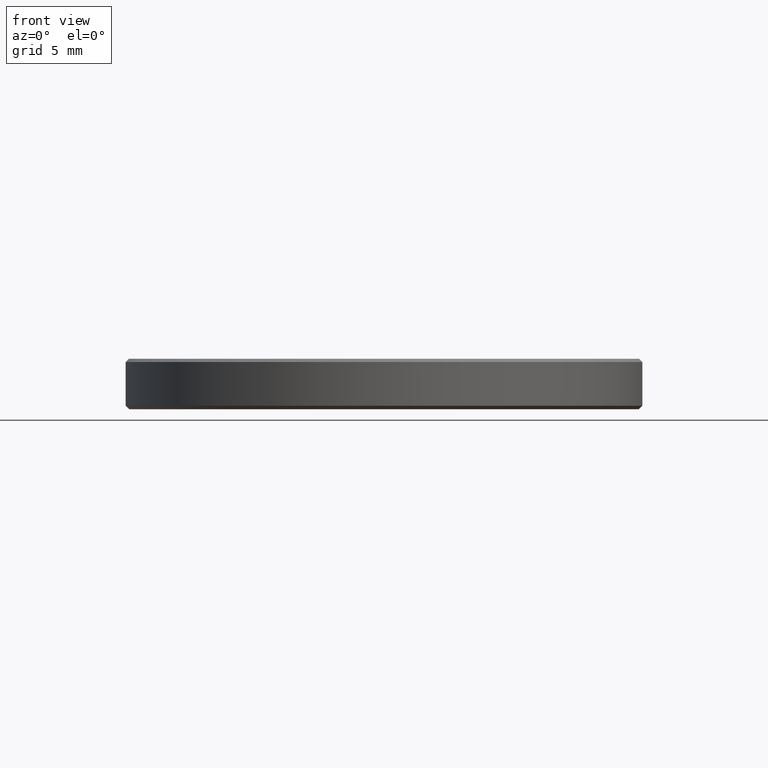
[diagram: clean part render]
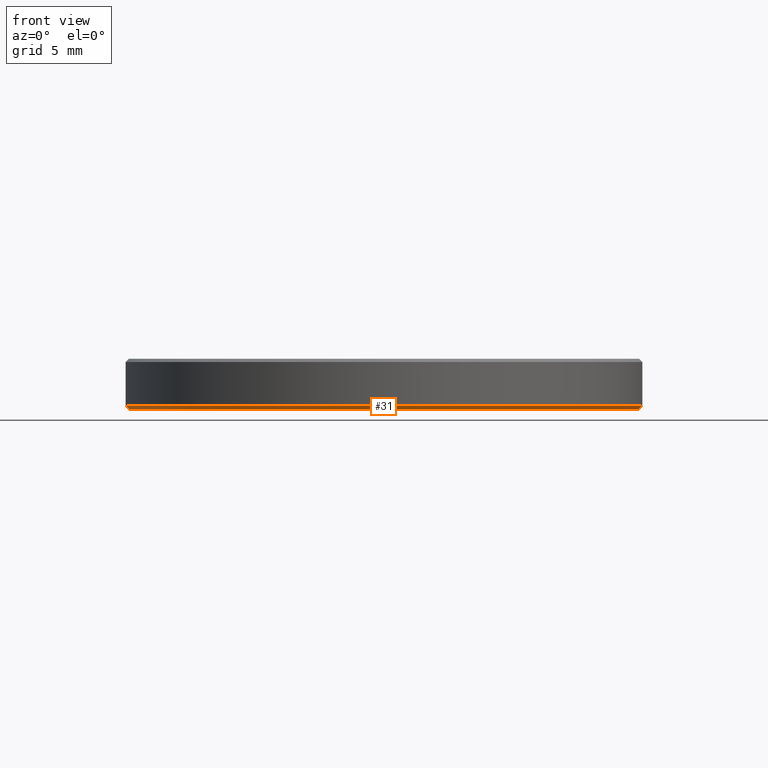
[diagram: same view with one face highlighted and labeled with its STEP entity id]
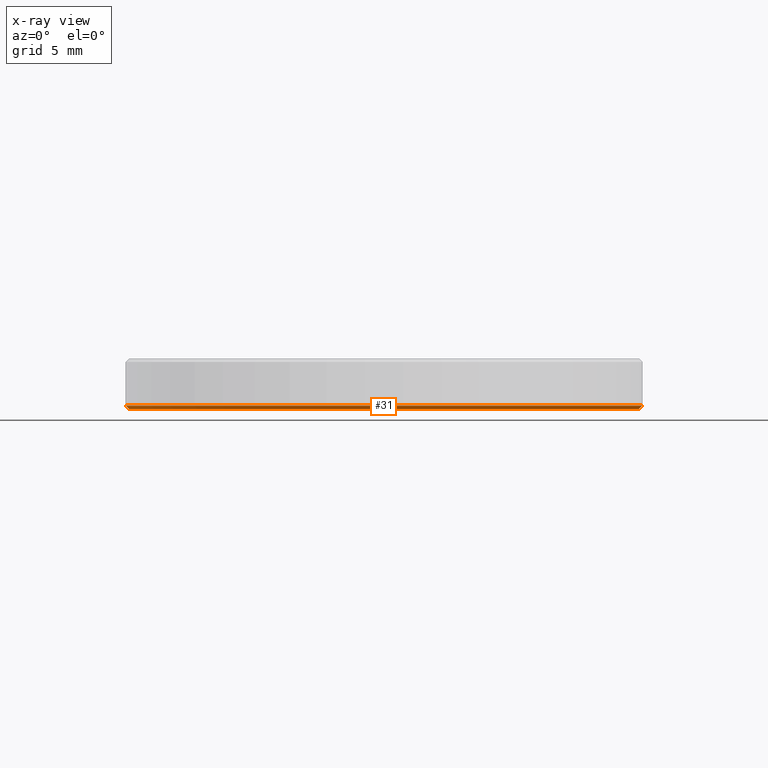
[diagram: x-ray of the same camera — body ghosted, the highlighted face saturated]
A machine part, front view. The second image highlights one B-rep face of the part: STEP entity #31.
The next image is the same camera in x-ray: the body ghosted, the highlighted face saturated — about 0% of this face is hidden behind the body in this view.
In plain terms, the highlighted conical surface has half-angle 45 deg.
Its self-contained STEP definition (entity closure, byte-faithful):
#3 = CARTESIAN_POINT ( 'NONE',  ( -15.00000000000000000, 1.836970198721029589E-15, 0.2000000000000048683 ) ) ;
#6 = EDGE_CURVE ( 'NONE', #129, #213, #61, .T. ) ;
#13 = DIRECTION ( 'NONE',  ( 0.000000000000000000, 0.000000000000000000, -1.000000000000000000 ) ) ;
#18 = CIRCLE ( 'NONE', #89, 15.00000000000000000 ) ;
#26 = EDGE_CURVE ( 'NONE', #213, #216, #18, .T. ) ;
#31 = ADVANCED_FACE ( 'NONE', ( #38 ), #253, .T. ) ;
#32 = CARTESIAN_POINT ( 'NONE',  ( -14.79999999999999538, 1.824723730729555837E-15, 9.184850993605147944E-16 ) ) ;
#38 = FACE_OUTER_BOUND ( 'NONE', #140, .T. ) ;
#41 = AXIS2_PLACEMENT_3D ( 'NONE', #161, #13, #184 ) ;
#59 = VECTOR ( 'NONE', #210, 1000.000000000000114 ) ;
#61 = LINE ( 'NONE', #135, #59 ) ;
#63 = ORIENTED_EDGE ( 'NONE', *, *, #6, .F. ) ;
#74 = CARTESIAN_POINT ( 'NONE',  ( 15.00000000000000000, 0.000000000000000000, 0.2000000000000048683 ) ) ;
#75 = LINE ( 'NONE', #74, #215 ) ;
#76 = DIRECTION ( 'NONE',  ( 1.000000000000000000, 0.000000000000000000, 0.000000000000000000 ) ) ;
#77 = VERTEX_POINT ( 'NONE', #192 ) ;
#81 = DIRECTION ( 'NONE',  ( 1.000000000000000000, 0.000000000000000000, 0.000000000000000000 ) ) ;
#89 = AXIS2_PLACEMENT_3D ( 'NONE', #266, #221, #76 ) ;
#129 = VERTEX_POINT ( 'NONE', #32 ) ;
#135 = CARTESIAN_POINT ( 'NONE',  ( -15.00000000000000000, 1.836970198721029589E-15, 0.2000000000000048683 ) ) ;
#140 = EDGE_LOOP ( 'NONE', ( #63, #248, #168, #171 ) ) ;
#154 = CARTESIAN_POINT ( 'NONE',  ( 15.00000000000000000, 0.000000000000000000, 0.2000000000000048683 ) ) ;
#155 = EDGE_CURVE ( 'NONE', #77, #129, #223, .T. ) ;
#161 = CARTESIAN_POINT ( 'NONE',  ( 0.000000000000000000, 0.000000000000000000, 9.184850993605147944E-16 ) ) ;
#166 = DIRECTION ( 'NONE',  ( -0.000000000000000000, -0.000000000000000000, 1.000000000000000000 ) ) ;
#168 = ORIENTED_EDGE ( 'NONE', *, *, #194, .T. ) ;
#171 = ORIENTED_EDGE ( 'NONE', *, *, #26, .F. ) ;
#184 = DIRECTION ( 'NONE',  ( 1.000000000000000000, 0.000000000000000000, 0.000000000000000000 ) ) ;
#192 = CARTESIAN_POINT ( 'NONE',  ( 14.79999999999999538, 0.000000000000000000, 9.184850993605147944E-16 ) ) ;
#194 = EDGE_CURVE ( 'NONE', #77, #216, #75, .T. ) ;
#210 = DIRECTION ( 'NONE',  ( -0.7071067811865474617, 8.659560562354932858E-17, 0.7071067811865474617 ) ) ;
#212 = CARTESIAN_POINT ( 'NONE',  ( 0.000000000000000000, 0.000000000000000000, 0.2000000000000048683 ) ) ;
#213 = VERTEX_POINT ( 'NONE', #3 ) ;
#215 = VECTOR ( 'NONE', #236, 1000.000000000000114 ) ;
#216 = VERTEX_POINT ( 'NONE', #154 ) ;
#221 = DIRECTION ( 'NONE',  ( -0.000000000000000000, -0.000000000000000000, 1.000000000000000000 ) ) ;
#223 = CIRCLE ( 'NONE', #41, 14.79999999999999538 ) ;
#236 = DIRECTION ( 'NONE',  ( 0.7071067811865474617, 0.000000000000000000, 0.7071067811865474617 ) ) ;
#248 = ORIENTED_EDGE ( 'NONE', *, *, #155, .F. ) ;
#253 = CONICAL_SURFACE ( 'NONE', #264, 15.00000000000000000, 0.7853981633974482790 ) ;
#264 = AXIS2_PLACEMENT_3D ( 'NONE', #212, #166, #81 ) ;
#266 = CARTESIAN_POINT ( 'NONE',  ( 0.000000000000000000, 0.000000000000000000, 0.2000000000000048683 ) ) ;